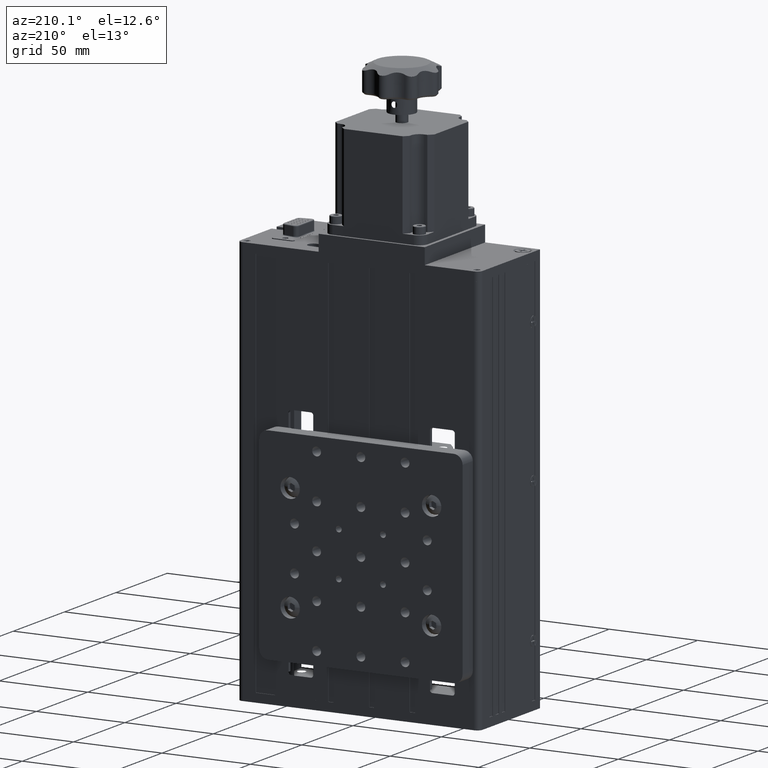
[diagram: clean part render]
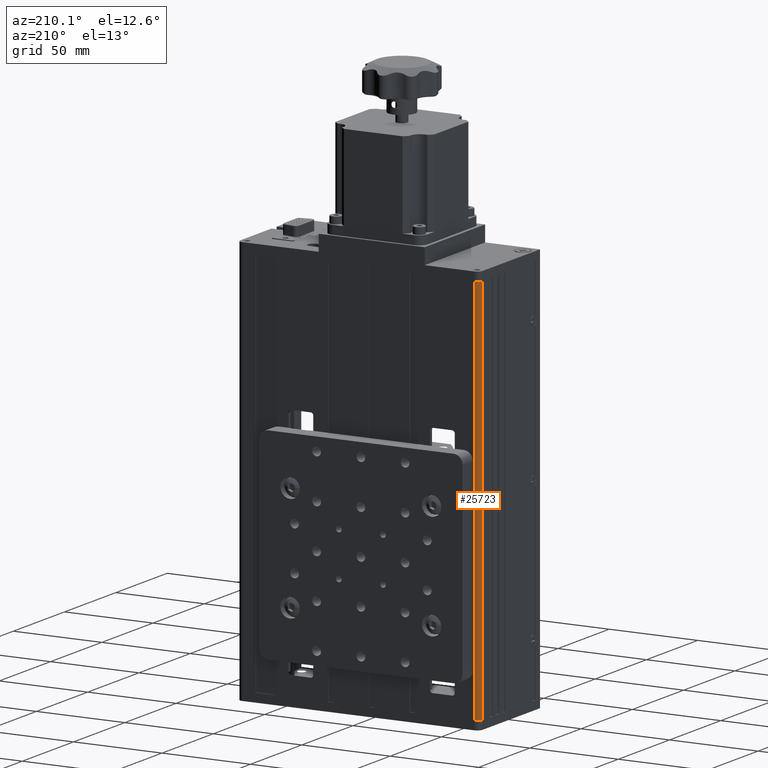
[diagram: same view with one face highlighted and labeled with its STEP entity id]
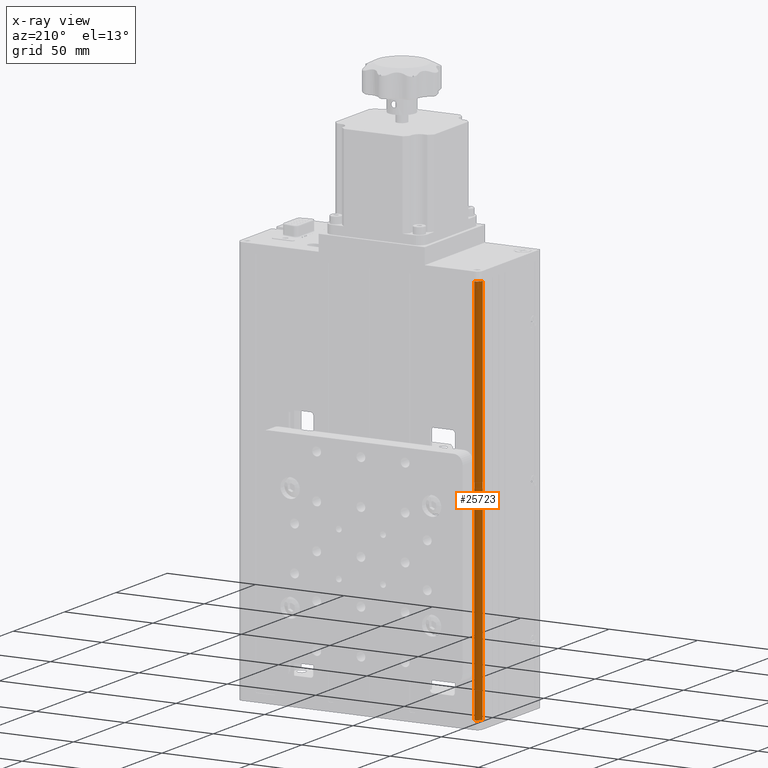
[diagram: x-ray of the same camera — body ghosted, the highlighted face saturated]
A machine part, auxiliary view. The second image highlights one B-rep face of the part: STEP entity #25723.
The next image is the same camera in x-ray: the body ghosted, the highlighted face saturated — about 0% of this face is hidden behind the body in this view.
In plain terms, the highlighted cylindrical surface (edge-blend (fillet) strip) has radius 3 mm, axis along (-0, -0, -1).
Its self-contained STEP definition (entity closure, byte-faithful):
#563 = VECTOR ( 'NONE', #32007, 1000.000000000000000 ) ;
#3215 = VERTEX_POINT ( 'NONE', #10437 ) ;
#5971 = CARTESIAN_POINT ( 'NONE',  ( -71.61080835603992500, 47.08234937935211000, 110.0000000000000000 ) ) ;
#6046 = EDGE_CURVE ( 'NONE', #32000, #33408, #19680, .T. ) ;
#6090 = DIRECTION ( 'NONE',  ( -0.0000000000000000000, -0.0000000000000000000, -1.000000000000000000 ) ) ;
#6996 = CARTESIAN_POINT ( 'NONE',  ( -68.61080835603992500, 47.08234937935211000, 110.0000000000000000 ) ) ;
#8062 = ORIENTED_EDGE ( 'NONE', *, *, #30226, .F. ) ;
#8256 = CARTESIAN_POINT ( 'NONE',  ( -68.61080835603992500, 47.08234937935211000, -110.0000000000000000 ) ) ;
#8808 = VERTEX_POINT ( 'NONE', #28407 ) ;
#9854 = CARTESIAN_POINT ( 'NONE',  ( -68.61080835603992500, 47.08234937935211000, 110.0000000000000000 ) ) ;
#10437 = CARTESIAN_POINT ( 'NONE',  ( -68.61080835603992500, 50.08234937935211000, -110.0000000000000000 ) ) ;
#11027 = FACE_OUTER_BOUND ( 'NONE', #37543, .T. ) ;
#11208 = ORIENTED_EDGE ( 'NONE', *, *, #35858, .T. ) ;
#11225 = DIRECTION ( 'NONE',  ( 1.000000000000000000, 0.0000000000000000000, 0.0000000000000000000 ) ) ;
#12608 = CIRCLE ( 'NONE', #23306, 3.000000000000002700 ) ;
#12800 = DIRECTION ( 'NONE',  ( 1.000000000000000000, 0.0000000000000000000, 0.0000000000000000000 ) ) ;
#14128 = ORIENTED_EDGE ( 'NONE', *, *, #19071, .T. ) ;
#15074 = CARTESIAN_POINT ( 'NONE',  ( -71.61080835603992500, 47.08234937935211000, 110.0000000000000000 ) ) ;
#18257 = LINE ( 'NONE', #15074, #25200 ) ;
#18728 = DIRECTION ( 'NONE',  ( -0.0000000000000000000, -0.0000000000000000000, -1.000000000000000000 ) ) ;
#19071 = EDGE_CURVE ( 'NONE', #3215, #8808, #12608, .T. ) ;
#19680 = CIRCLE ( 'NONE', #21911, 3.000000000000002700 ) ;
#19861 = ORIENTED_EDGE ( 'NONE', *, *, #6046, .F. ) ;
#21911 = AXIS2_PLACEMENT_3D ( 'NONE', #9854, #30516, #12800 ) ;
#23306 = AXIS2_PLACEMENT_3D ( 'NONE', #8256, #28945, #11225 ) ;
#24198 = LINE ( 'NONE', #29033, #563 ) ;
#25200 = VECTOR ( 'NONE', #6090, 1000.000000000000000 ) ;
#25340 = AXIS2_PLACEMENT_3D ( 'NONE', #6996, #18728, #33767 ) ;
#25723 = ADVANCED_FACE ( 'NONE', ( #11027 ), #35082, .T. ) ;
#28407 = CARTESIAN_POINT ( 'NONE',  ( -71.61080835603992500, 47.08234937935211000, -110.0000000000000000 ) ) ;
#28945 = DIRECTION ( 'NONE',  ( 0.0000000000000000000, 0.0000000000000000000, 1.000000000000000000 ) ) ;
#29033 = CARTESIAN_POINT ( 'NONE',  ( -68.61080835603992500, 50.08234937935211000, 110.0000000000000000 ) ) ;
#30226 = EDGE_CURVE ( 'NONE', #33408, #8808, #18257, .T. ) ;
#30516 = DIRECTION ( 'NONE',  ( 0.0000000000000000000, 0.0000000000000000000, 1.000000000000000000 ) ) ;
#32000 = VERTEX_POINT ( 'NONE', #36580 ) ;
#32007 = DIRECTION ( 'NONE',  ( -0.0000000000000000000, -0.0000000000000000000, -1.000000000000000000 ) ) ;
#33408 = VERTEX_POINT ( 'NONE', #5971 ) ;
#33767 = DIRECTION ( 'NONE',  ( -1.000000000000000000, 0.0000000000000000000, 0.0000000000000000000 ) ) ;
#35082 = CYLINDRICAL_SURFACE ( 'NONE', #25340, 3.000000000000002700 ) ;
#35858 = EDGE_CURVE ( 'NONE', #32000, #3215, #24198, .T. ) ;
#36580 = CARTESIAN_POINT ( 'NONE',  ( -68.61080835603992500, 50.08234937935211000, 110.0000000000000000 ) ) ;
#37543 = EDGE_LOOP ( 'NONE', ( #14128, #8062, #19861, #11208 ) ) ;